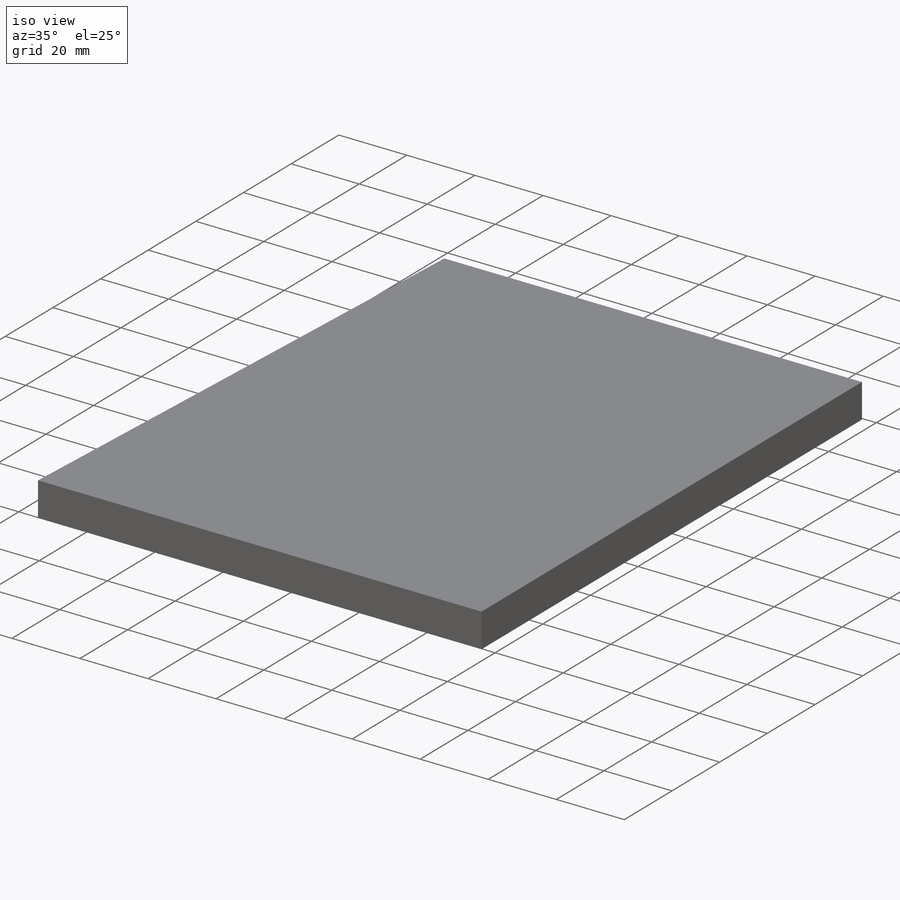
[diagram: iso view]
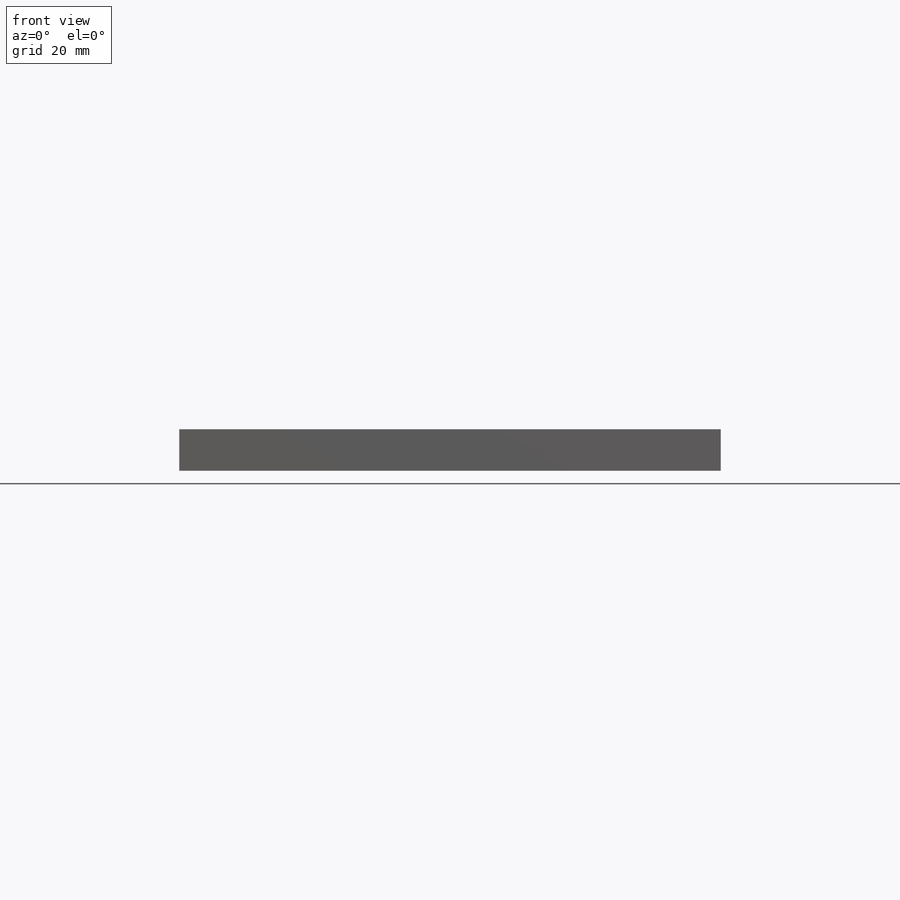
[diagram: front view]
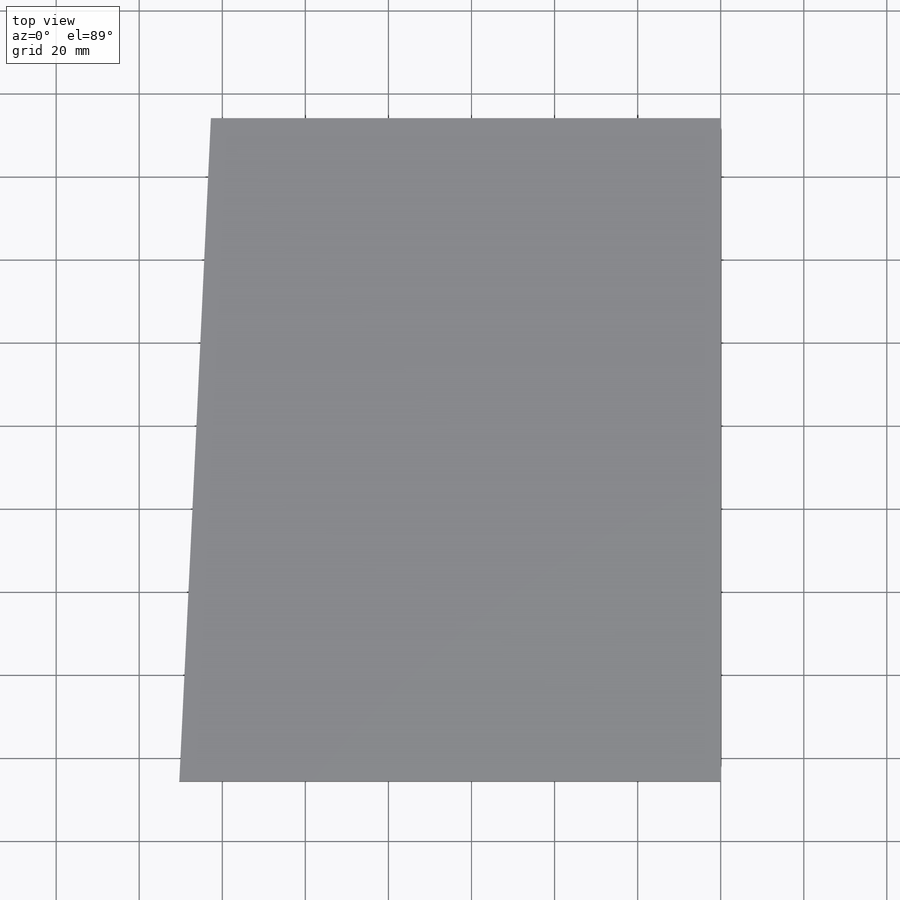
[diagram: top view]
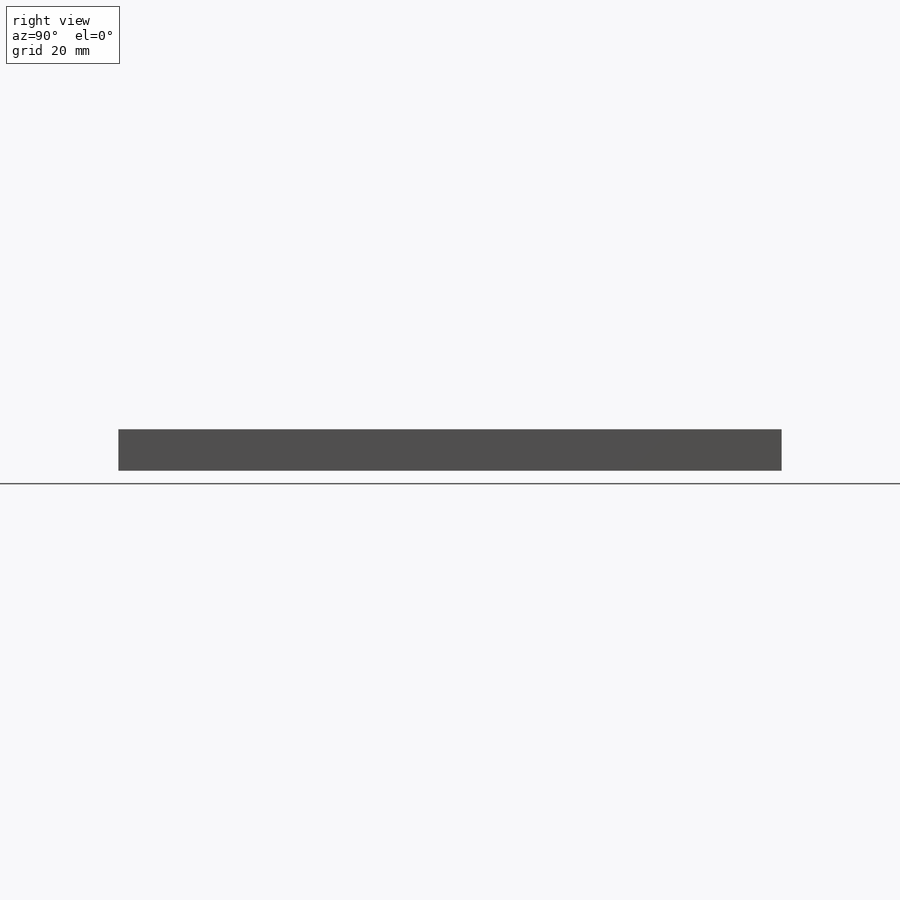
[diagram: right view]
SOLIDWORKS PART (.sldprt)
format: sldprt  version: not decoded by parser v0  size: 672,768 bytes
history: native  units: mm
features: sketch x14, plane x5, sheet_metal_op x5, material x1, extrude x1 + 5 further entries (+8 scaffold rows collapsed; 2 parser-record rows omitted)
feature tree (41):
  scaffold x8  (default folders/planes/origin — collapsed)
  material  "Material <nicht festgelegt>"
  plane  "Ebene vorne"
  plane  "Ebene oben"
  plane  "Ebene rechts"
  plane  "Ebene2"  Offset=300mm
  sketch  "Skizze6"
  sketch  "Skizze7"
  sheet_metal_op  "Blech5"
  plane  "Ebene3"  Offset=120mm
  sketch  "Skizze10"  dims[D1=10.0mm D2=10.0mm D3=~266.674376mm]
  extrude  "Aufsatz-Linear austragen3"  [1 undecoded]
  sketch  "Skizze12"  dims[D1=10.0mm D2=10.0mm D3=10.0mm Aufsatz-Linear austragen5=0.0]
  sheet_metal_op  "Blech7"
  sheet_metal_op  "Blech8"  Volumenkörper übernehmen7=0deg
  sheet_metal_op  "Blech9"  Volumenkörper übernehmen8=0deg
  sheet_metal_op  "Blech11"  Volumenkörper übernehmen10=0deg
  "Abwicklung2"
  sketch  "Biegung-Linien2"
  sketch  "Rahmen2"
  parser-record x2  (decoder bookkeeping rows leaked as tree rows — omitted from the tree; the rows remain in map.json)
  "Abwicklung3"
  sketch  "Biegung-Linien3"
  sketch  "Rahmen3"
  "Abwicklung4"
  sketch  "Biegung-Linien4"
  sketch  "Rahmen4"
  "Abwicklung5"
  sketch  "Biegung-Linien5"
  sketch  "Rahmen5"
  "Abwicklung6"
  sketch  "Biegung-Linien6"
  sketch  "Rahmen6"
decode coverage: 5 of 20 modeling features carry decoded parameters; 5 rows unclassified (native names shown)
note: ~ marks probable driven/reference dimensions
note: 1 parameter value undecoded
note: suppression state not decoded; provenance and decode notes live in map.json
